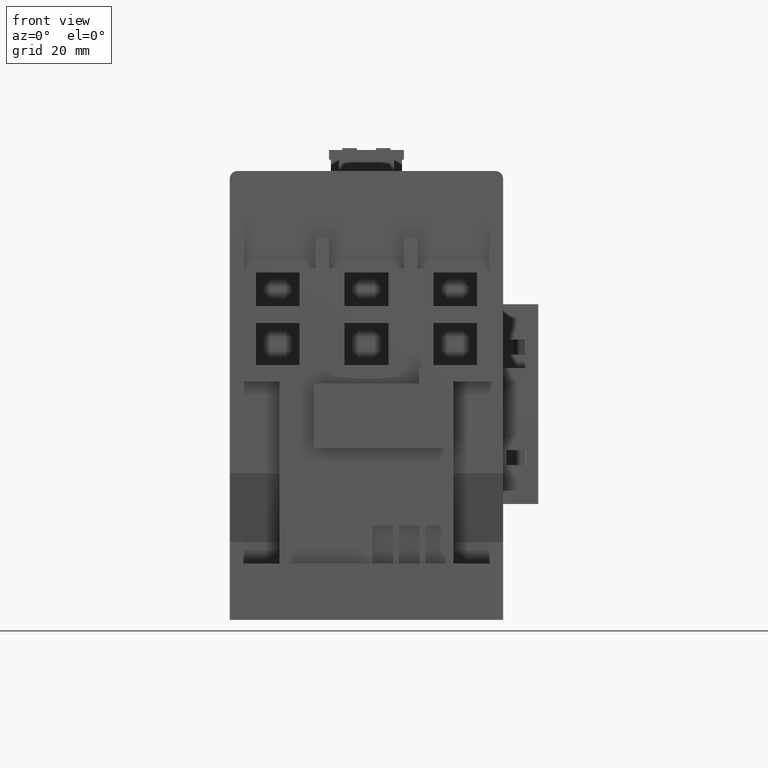
[diagram: clean part render]
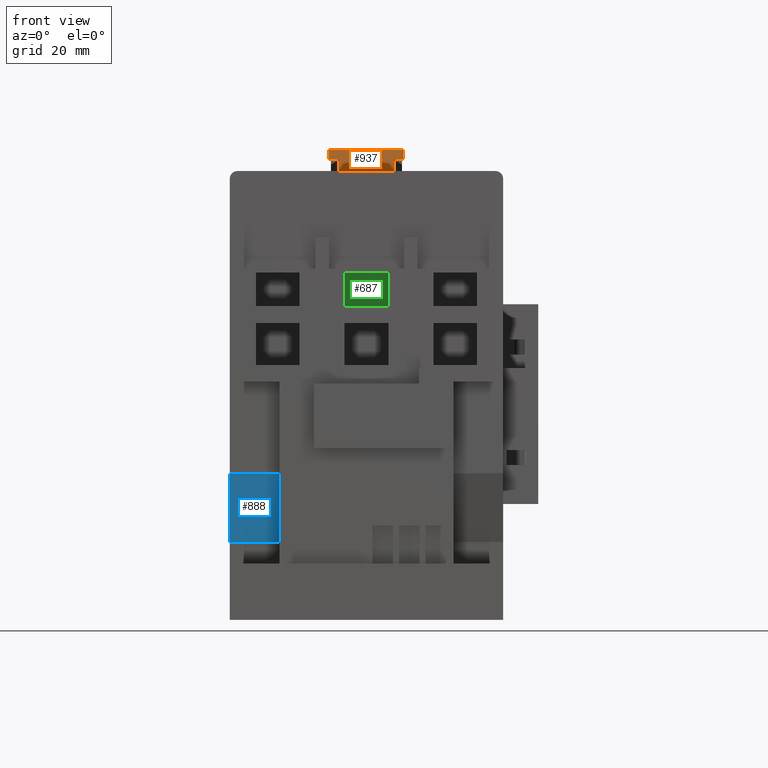
[diagram: same view with three faces highlighted in distinct colors, each labeled with its STEP entity id]
A machine part, front view with three faces highlighted in distinct colors.
Their STEP definitions:

[orange] entity #937 — the highlighted planar face has unit normal (0, 1, 0).
#517=FACE_OUTER_BOUND('',#2045,.T.);
#937=ADVANCED_FACE('',(#517),#1368,.F.);
#1368=PLANE('',#8971);
#2045=EDGE_LOOP('',(#3886,#3887,#3888,#3889,#3890,#3891,#3892,#3893));
#3886=ORIENTED_EDGE('',*,*,#5433,.T.);
#3887=ORIENTED_EDGE('',*,*,#6207,.T.);
#3888=ORIENTED_EDGE('',*,*,#6208,.T.);
#3889=ORIENTED_EDGE('',*,*,#5448,.T.);
#3890=ORIENTED_EDGE('',*,*,#6209,.T.);
#3891=ORIENTED_EDGE('',*,*,#6210,.T.);
#3892=ORIENTED_EDGE('',*,*,#6211,.F.);
#3893=ORIENTED_EDGE('',*,*,#6212,.F.);
#4641=VERTEX_POINT('',#11543);
#4642=VERTEX_POINT('',#11545);
#4653=VERTEX_POINT('',#11574);
#4654=VERTEX_POINT('',#11575);
#5149=VERTEX_POINT('',#13126);
#5150=VERTEX_POINT('',#13129);
#5151=VERTEX_POINT('',#13131);
#5152=VERTEX_POINT('',#13133);
#5433=EDGE_CURVE('',#4642,#4641,#6596,.T.);
#5448=EDGE_CURVE('',#4653,#4654,#6611,.T.);
#6207=EDGE_CURVE('',#4641,#5149,#7312,.T.);
#6208=EDGE_CURVE('',#5149,#4653,#7313,.T.);
#6209=EDGE_CURVE('',#4654,#5150,#7314,.T.);
#6210=EDGE_CURVE('',#5150,#5151,#7315,.T.);
#6211=EDGE_CURVE('',#5152,#5151,#7316,.T.);
#6212=EDGE_CURVE('',#4642,#5152,#7317,.T.);
#6596=LINE('',#11544,#7649);
#6611=LINE('',#11573,#7664);
#7312=LINE('',#13125,#8365);
#7313=LINE('',#13127,#8366);
#7314=LINE('',#13128,#8367);
#7315=LINE('',#13130,#8368);
#7316=LINE('',#13132,#8369);
#7317=LINE('',#13134,#8370);
#7649=VECTOR('',#9280,1.);
#7664=VECTOR('',#9301,1.);
#8365=VECTOR('',#10712,1.);
#8366=VECTOR('',#10713,1.);
#8367=VECTOR('',#10714,1.);
#8368=VECTOR('',#10715,1.);
#8369=VECTOR('',#10716,1.);
#8370=VECTOR('',#10717,1.);
#8971=AXIS2_PLACEMENT_3D('',#13135,#10718,#10719);
#9280=DIRECTION('',(1.17145334231628E-015,0.,-1.));
#9301=DIRECTION('',(1.,0.,0.));
#10712=DIRECTION('',(1.,0.,0.));
#10713=DIRECTION('',(2.91550164029715E-016,0.,-1.));
#10714=DIRECTION('',(0.,0.,1.));
#10715=DIRECTION('',(1.,0.,0.));
#10716=DIRECTION('',(1.17145334231628E-015,0.,-1.));
#10717=DIRECTION('',(1.,0.,0.));
#10718=DIRECTION('',(0.,1.,0.));
#10719=DIRECTION('',(0.,0.,1.));
#11543=CARTESIAN_POINT('',(-9.8,-16.,115.525));
#11544=CARTESIAN_POINT('',(-9.8,-16.,118.05));
#11545=CARTESIAN_POINT('',(-9.8,-16.,118.05));
#11573=CARTESIAN_POINT('',(-9.8,-16.,112.55));
#11574=CARTESIAN_POINT('',(-7.2,-16.,112.55));
#11575=CARTESIAN_POINT('',(7.2,-16.,112.55));
#13125=CARTESIAN_POINT('',(-9.8,-16.,115.525));
#13126=CARTESIAN_POINT('',(-7.2,-16.,115.525));
#13127=CARTESIAN_POINT('',(-7.2,-16.,118.05));
#13128=CARTESIAN_POINT('',(7.2,-16.,118.05));
#13129=CARTESIAN_POINT('',(7.2,-16.,115.525));
#13130=CARTESIAN_POINT('',(-9.8,-16.,115.525));
#13131=CARTESIAN_POINT('',(9.8,-16.,115.525));
#13132=CARTESIAN_POINT('',(9.79999999999999,-16.,118.05));
#13133=CARTESIAN_POINT('',(9.79999999999999,-16.,118.05));
#13134=CARTESIAN_POINT('',(-9.8,-16.,118.05));
#13135=CARTESIAN_POINT('',(-9.8,-16.,118.05));

[blue] entity #888 — the highlighted planar face has unit normal (0, -0.9518, -0.3067).
#468=FACE_OUTER_BOUND('',#1996,.T.);
#888=ADVANCED_FACE('',(#468),#1327,.T.);
#1327=PLANE('',#8922);
#1996=EDGE_LOOP('',(#3688,#3689,#3690,#3691));
#3688=ORIENTED_EDGE('',*,*,#5501,.F.);
#3689=ORIENTED_EDGE('',*,*,#6142,.F.);
#3690=ORIENTED_EDGE('',*,*,#6143,.T.);
#3691=ORIENTED_EDGE('',*,*,#6144,.T.);
#4700=VERTEX_POINT('',#11674);
#4701=VERTEX_POINT('',#11676);
#5126=VERTEX_POINT('',#12987);
#5127=VERTEX_POINT('',#12991);
#5501=EDGE_CURVE('',#4700,#4701,#6658,.T.);
#6142=EDGE_CURVE('',#5126,#4700,#7247,.T.);
#6143=EDGE_CURVE('',#5126,#5127,#7248,.T.);
#6144=EDGE_CURVE('',#5127,#4701,#7249,.T.);
#6658=LINE('',#11675,#7711);
#7247=LINE('',#12988,#8300);
#7248=LINE('',#12990,#8301);
#7249=LINE('',#12992,#8302);
#7711=VECTOR('',#9362,1.);
#8300=VECTOR('',#10547,1.);
#8301=VECTOR('',#10550,1.);
#8302=VECTOR('',#10551,1.);
#8922=AXIS2_PLACEMENT_3D('',#12993,#10552,#10553);
#9362=DIRECTION('',(0.,-0.306693767453372,0.951808243820811));
#10547=DIRECTION('',(-1.,0.,0.));
#10550=DIRECTION('',(0.,-0.306693767453372,0.951808243820811));
#10551=DIRECTION('',(-1.,0.,0.));
#10552=DIRECTION('',(0.,-0.951808243820811,-0.306693767453372));
#10553=DIRECTION('',(0.,0.306693767453372,-0.951808243820811));
#11674=CARTESIAN_POINT('',(-35.8,-42.1,15.4000000000094));
#11675=CARTESIAN_POINT('',(-35.8,-42.1,15.4000000000094));
#11676=CARTESIAN_POINT('',(-35.8,-47.9,33.4000000000093));
#12987=CARTESIAN_POINT('',(-22.8,-42.1,15.4000000000094));
#12988=CARTESIAN_POINT('',(-22.8,-42.1,15.4000000000094));
#12990=CARTESIAN_POINT('',(-22.8,-42.1,15.4000000000094));
#12991=CARTESIAN_POINT('',(-22.8,-47.9,33.4000000000093));
#12992=CARTESIAN_POINT('',(-22.8,-47.9,33.4000000000093));
#12993=CARTESIAN_POINT('',(-22.8,-42.1,15.4000000000094));

[green] entity #687 — the highlighted planar face has unit normal (0, 1, 0).
#287=FACE_OUTER_BOUND('',#1775,.T.);
#687=ADVANCED_FACE('',(#287),#1138,.F.);
#1138=PLANE('',#8703);
#1775=EDGE_LOOP('',(#2802,#2803,#2804,#2805));
#2802=ORIENTED_EDGE('',*,*,#5790,.F.);
#2803=ORIENTED_EDGE('',*,*,#5796,.F.);
#2804=ORIENTED_EDGE('',*,*,#5794,.F.);
#2805=ORIENTED_EDGE('',*,*,#5792,.F.);
#4940=VERTEX_POINT('',#12245);
#4941=VERTEX_POINT('',#12247);
#4942=VERTEX_POINT('',#12251);
#4943=VERTEX_POINT('',#12255);
#5790=EDGE_CURVE('',#4940,#4941,#6913,.T.);
#5792=EDGE_CURVE('',#4941,#4942,#6915,.T.);
#5794=EDGE_CURVE('',#4942,#4943,#6917,.T.);
#5796=EDGE_CURVE('',#4943,#4940,#6919,.T.);
#6913=LINE('',#12246,#7966);
#6915=LINE('',#12250,#7968);
#6917=LINE('',#12254,#7970);
#6919=LINE('',#12258,#7972);
#7966=VECTOR('',#9769,1.);
#7968=VECTOR('',#9773,1.);
#7970=VECTOR('',#9777,1.);
#7972=VECTOR('',#9781,1.);
#8703=AXIS2_PLACEMENT_3D('',#12260,#9784,#9785);
#9769=DIRECTION('',(-1.,0.,0.));
#9773=DIRECTION('',(3.94255335449274E-016,0.,1.));
#9777=DIRECTION('',(1.,0.,0.));
#9781=DIRECTION('',(0.,0.,-1.));
#9784=DIRECTION('',(0.,1.,0.));
#9785=DIRECTION('',(0.,0.,1.));
#12245=CARTESIAN_POINT('',(5.75,-30.7,77.15));
#12246=CARTESIAN_POINT('',(5.75,-30.7,77.15));
#12247=CARTESIAN_POINT('',(-5.75000000000001,-30.7,77.15));
#12250=CARTESIAN_POINT('',(-5.75000000000001,-30.7,77.15));
#12251=CARTESIAN_POINT('',(-5.75,-30.7,85.95));
#12254=CARTESIAN_POINT('',(-5.75,-30.7,85.95));
#12255=CARTESIAN_POINT('',(5.75,-30.7,85.95));
#12258=CARTESIAN_POINT('',(5.75,-30.7,85.95));
#12260=CARTESIAN_POINT('',(-5.75000000000001,-30.7,77.15));